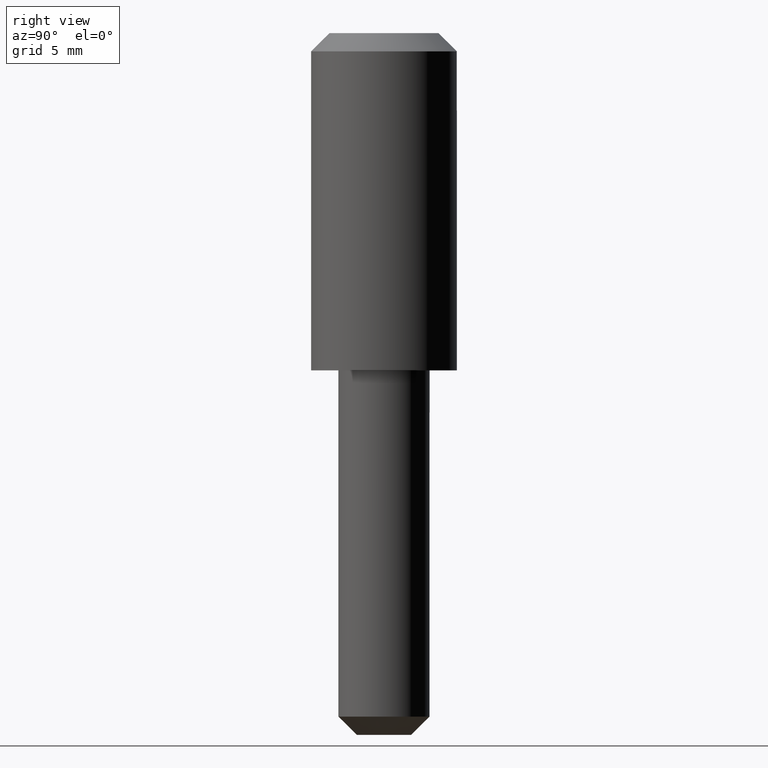
[diagram: clean part render]
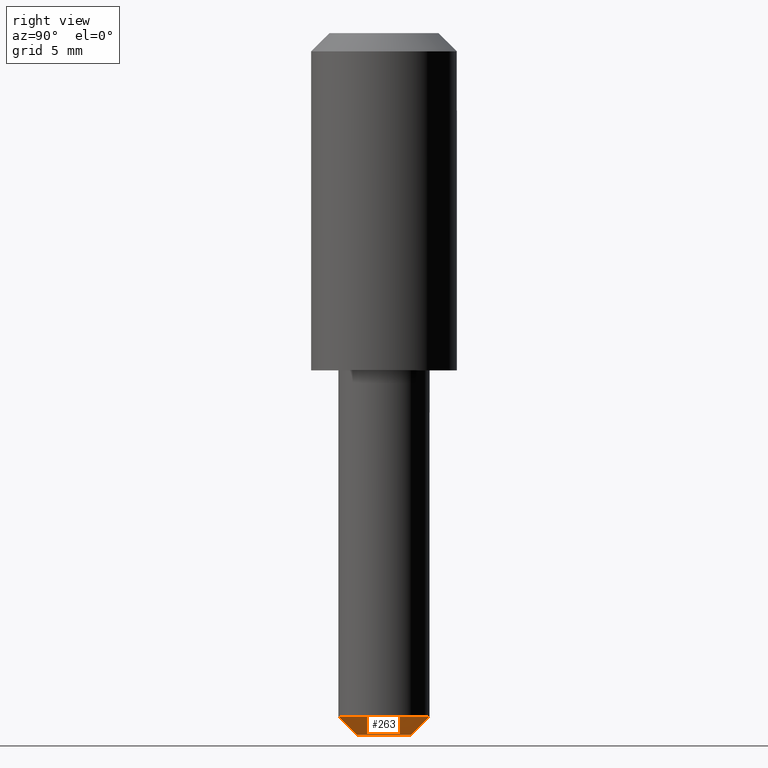
[diagram: same view with one face highlighted and labeled with its STEP entity id]
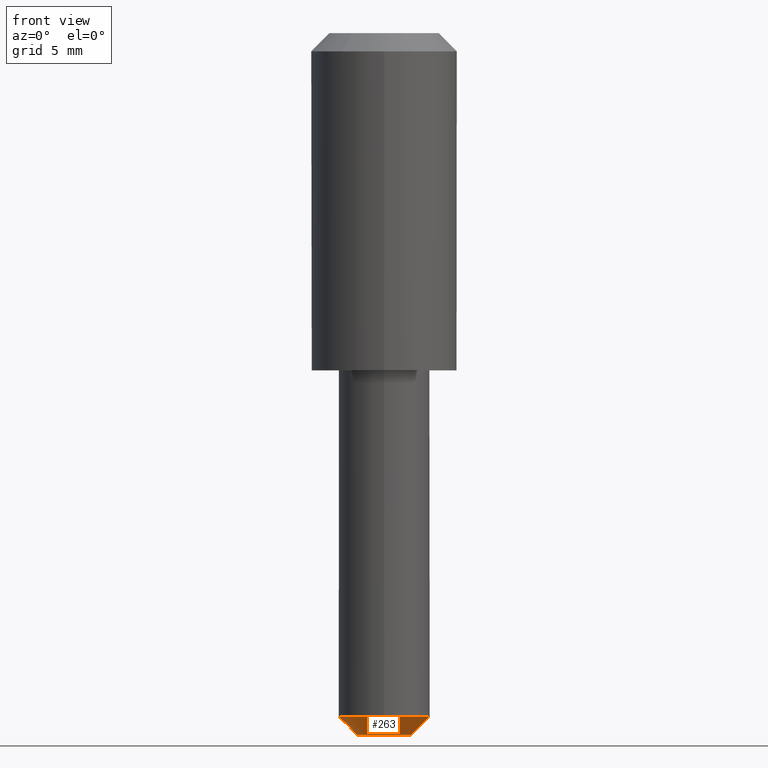
[diagram: same view with one face highlighted and labeled with its STEP entity id]
A machine part, right view. The second image highlights one B-rep face of the part: STEP entity #263.
A second angle (front view) of the same face is appended — the face is thin or edge-on in the first view.
In plain terms, the highlighted conical surface has half-angle 45 deg.
Its self-contained STEP definition (entity closure, byte-faithful):
#31=FACE_OUTER_BOUND('',#47,.T.);
#47=EDGE_LOOP('',(#189,#190,#191,#192,#193));
#65=LINE('',#410,#93);
#93=VECTOR('',#332,0.2625);
#121=CIRCLE('',#303,2.5);
#122=CIRCLE('',#304,1.5);
#123=CIRCLE('',#305,2.5);
#129=VERTEX_POINT('',#406);
#130=VERTEX_POINT('',#407);
#131=VERTEX_POINT('',#409);
#153=EDGE_CURVE('',#129,#130,#121,.T.);
#154=EDGE_CURVE('',#129,#131,#65,.T.);
#155=EDGE_CURVE('',#131,#131,#122,.T.);
#156=EDGE_CURVE('',#130,#129,#123,.T.);
#189=ORIENTED_EDGE('',*,*,#153,.F.);
#190=ORIENTED_EDGE('',*,*,#154,.T.);
#191=ORIENTED_EDGE('',*,*,#155,.F.);
#192=ORIENTED_EDGE('',*,*,#154,.F.);
#193=ORIENTED_EDGE('',*,*,#156,.F.);
#261=CONICAL_SURFACE('',#302,0.2625,0.785398163397448);
#263=ADVANCED_FACE('',(#31),#261,.T.);
#302=AXIS2_PLACEMENT_3D('',#405,#328,#329);
#303=AXIS2_PLACEMENT_3D('',#408,#330,#331);
#304=AXIS2_PLACEMENT_3D('',#411,#333,#334);
#305=AXIS2_PLACEMENT_3D('',#412,#335,#336);
#328=DIRECTION('center_axis',(3.80063223752928E-16,2.80353548521089E-17,
1.));
#329=DIRECTION('ref_axis',(-0.581108581114918,0.813826036051075,1.98042098980449E-16));
#330=DIRECTION('center_axis',(0.,0.,1.));
#331=DIRECTION('ref_axis',(-1.,0.,0.));
#332=DIRECTION('',(-0.410905818312052,0.575461908797883,-0.707106781186548));
#333=DIRECTION('center_axis',(0.,0.,-1.));
#334=DIRECTION('ref_axis',(-1.,0.,0.));
#335=DIRECTION('center_axis',(0.,0.,1.));
#336=DIRECTION('ref_axis',(-1.,0.,0.));
#405=CARTESIAN_POINT('Origin',(-6.93889390390723E-17,-2.4980018054066E-15,
-21.2375));
#406=CARTESIAN_POINT('',(1.4527714527873,-2.03456509012769,-19.));
#407=CARTESIAN_POINT('',(3.06161699786839E-16,-2.5,-19.));
#408=CARTESIAN_POINT('Origin',(0.,-2.326829E-15,-19.));
#409=CARTESIAN_POINT('',(0.87166287167238,-1.22073905407662,-20.));
#410=CARTESIAN_POINT('',(0.152541002542666,-0.21362933446341,-21.2375));
#411=CARTESIAN_POINT('Origin',(0.,-2.449294E-15,-20.));
#412=CARTESIAN_POINT('Origin',(0.,-2.326829E-15,-19.));